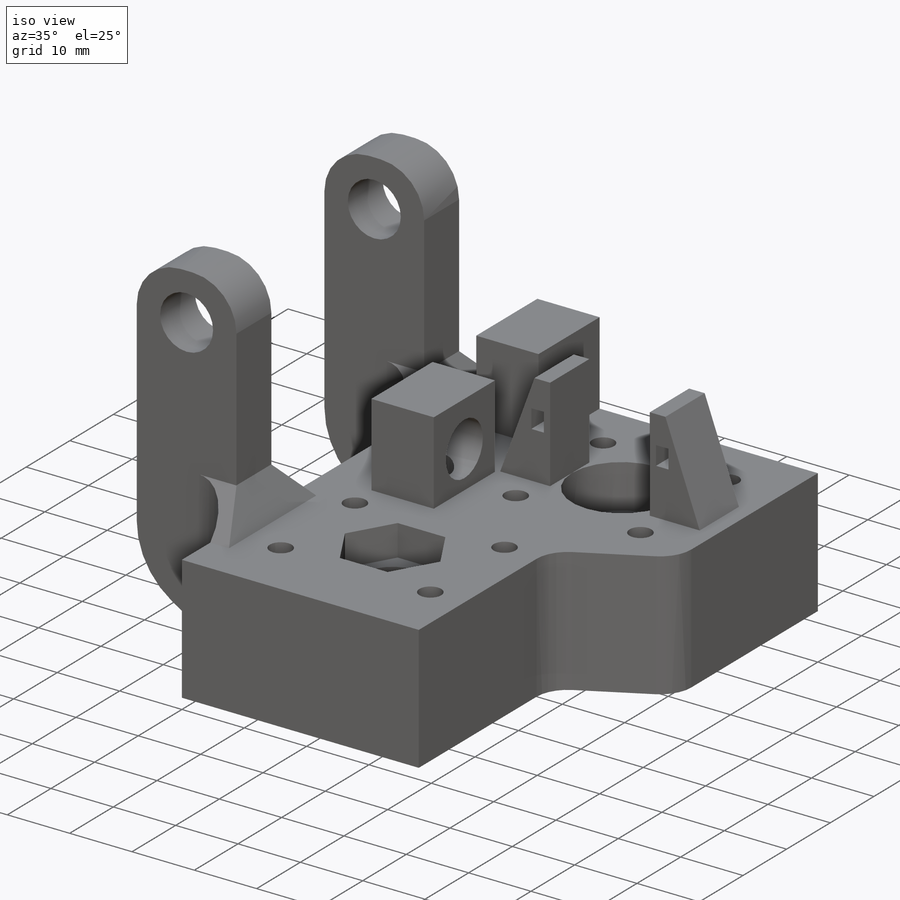
[diagram: iso view]
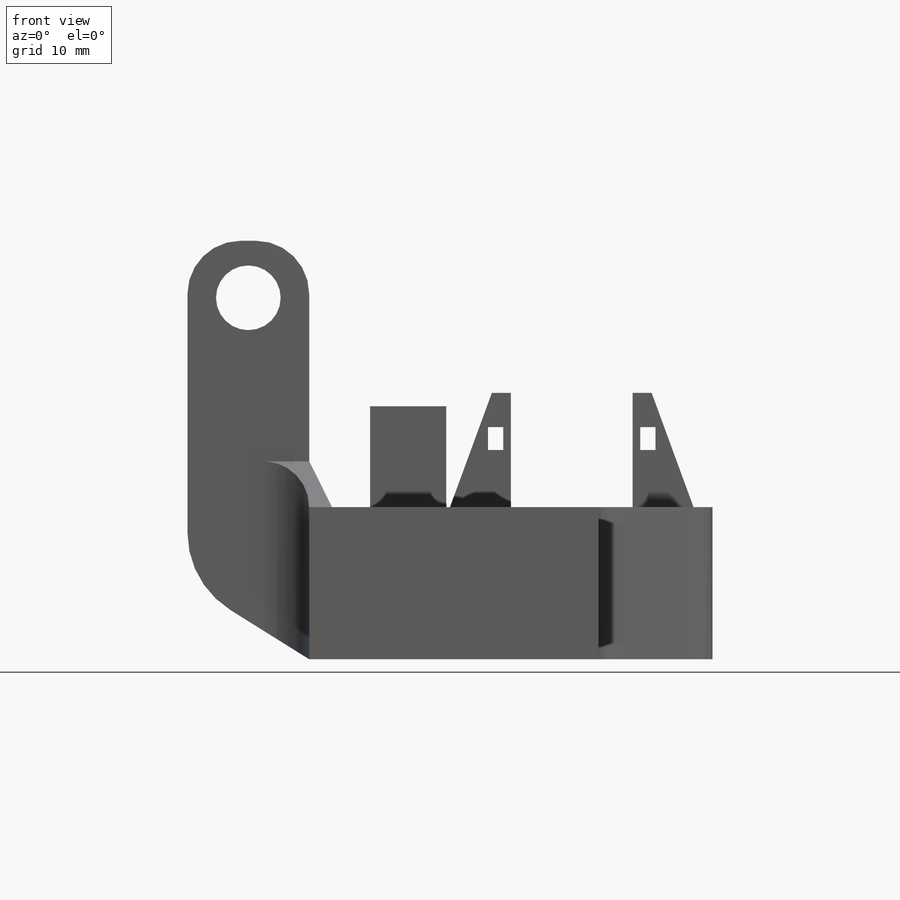
[diagram: front view]
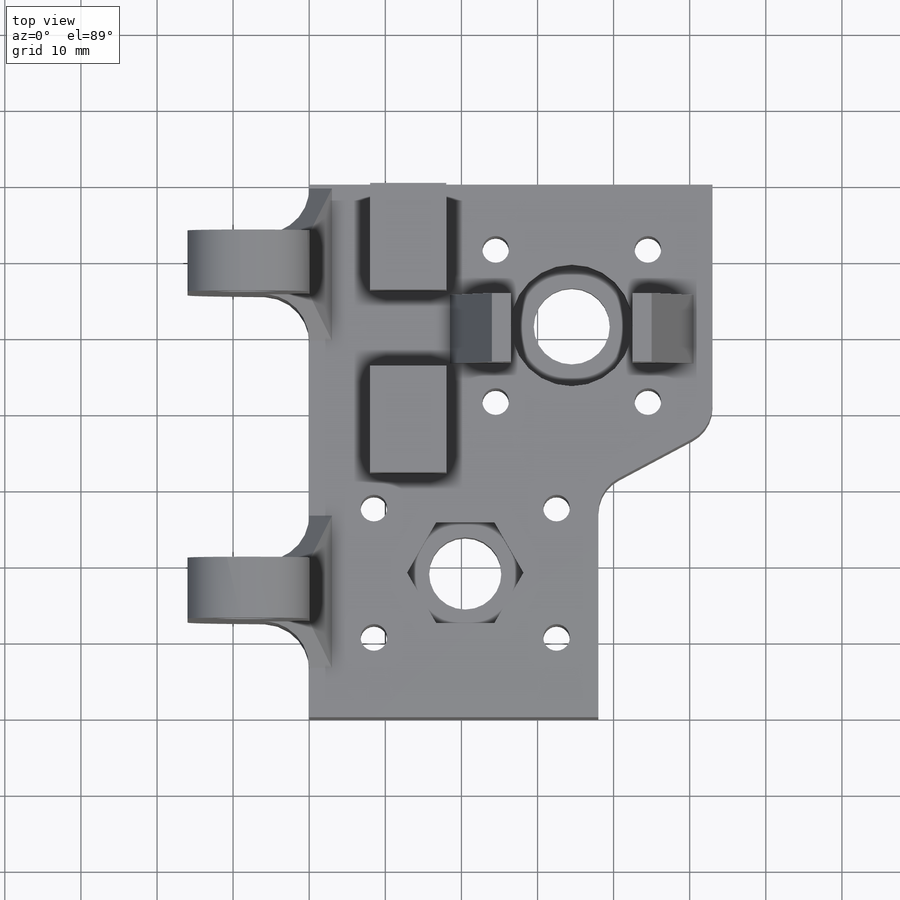
[diagram: top view]
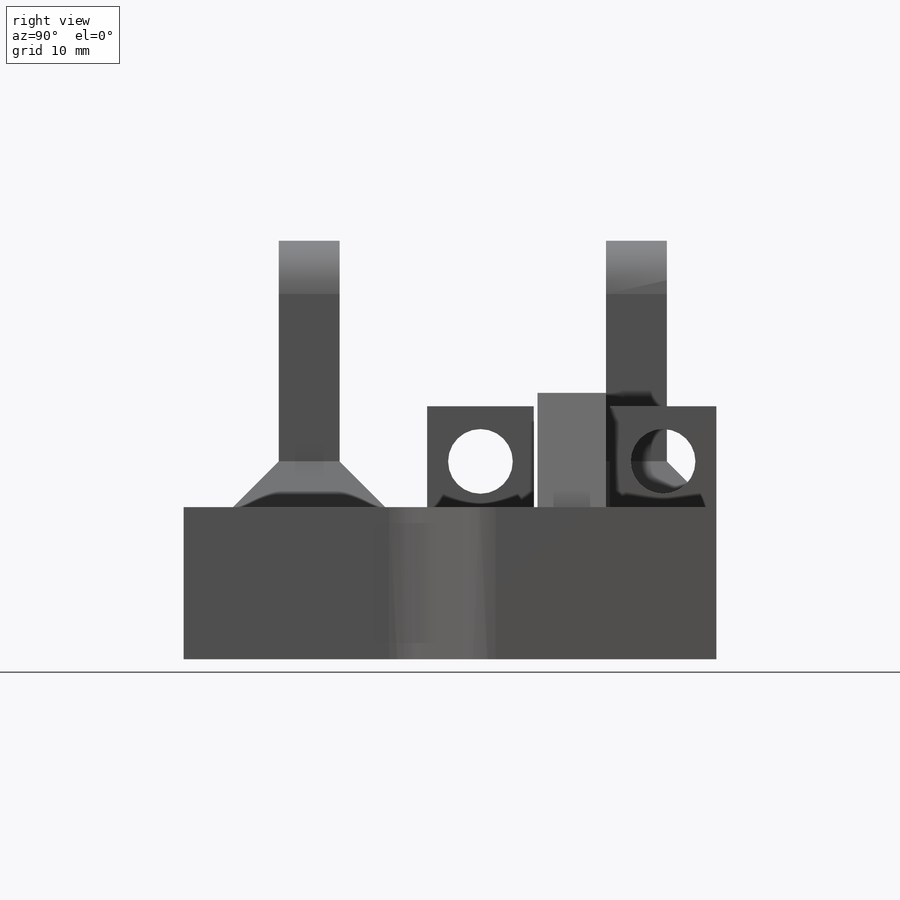
[diagram: right view]
SOLIDWORKS PART (.sldprt)
format: sldprt  version: not decoded by parser v0  size: 624,640 bytes
history: native  units: mm
features: sketch x20, cut_extrude x11, extrude x5, fillet x4, chamfer x3, hole x2, material x1 (+11 scaffold rows collapsed)
feature tree (57):
  scaffold x11  (default folders/planes/origin — collapsed)
  material  "ABS PC"
  sketch  "Sketch1"  dims[D1=53.0mm D2=70.0mm]
  extrude  "Boss-Extrude1"  Depth=10mm
  sketch  "Sketch2"  dims[D1=38.0mm D2=30.0mm D3=32.0mm D4=53.0mm D5=70.0mm]
  extrude  "Boss-Extrude2"  Depth=10mm
  sketch  "Sketch3"  dims[c1.D1=9.5mm c1.D2=10.0mm c1.D3=9.5mm c1.D4=10.0mm c1.D5=10.0mm c1.D6=10.0mm c2.D3=32.5mm c2.D4=14.0mm c2.D5=18.5mm c2.D6=18.5mm]
  cut_extrude  "Cut-Extrude1"  [1 undecoded]
  sketch  "Sketch4"  dims[D1=15.3mm]
  cut_extrude  "Cut-Extrude2"  Depth=5mm
  sketch  "Sketch5"  dims[c1.D3=3.5mm c1.D4=3.5mm c1.D5=3.5mm c1.D6=3.5mm c1.D7=3.5mm c1.D8=9.5mm c1.D9=9.5mm c1.D1=10.0mm c1.D2=10.0mm c2.D4=10.0mm c2.D5=10.0mm c2.D6=12.0mm c2.D7=12.0mm c2.D8=8.5mm c2.D9=8.5mm]
  cut_extrude  "Cut-Extrude3"  [1 undecoded]
  sketch  "Sketch6"  dims[D1=15.0mm D2=38.0mm D3=30.0mm]
  cut_extrude  "Cut-Extrude4"  [1 undecoded]
  sketch  "Sketch7"  dims[D1=16.0mm]
  cut_extrude  "Cut-Extrude5"  Depth=7mm
  sketch  "Sketch8"  dims[D1=14.0mm D2=10.0mm D3=10.0mm D4=35.0mm]
  extrude  "Boss-Extrude3"  Depth=13.25mm
  sketch  "Sketch9"  dims[c1.D1=8.5mm c1.D2=8.5mm c1.D3=8.5mm c1.D4=8.5mm c2.D2=7.0mm c2.D3=7.0mm c2.D4=6.0mm]
  cut_extrude  "Cut-Extrude6"  Depth=13.5mm
  sketch  "Sketch10"  dims[D1=8.4mm D2=5.2mm D3=3.0mm D4=35.8mm]
  cut_extrude  "Cut-Extrude7"  Depth=38mm
  fillet  "Fillet1"  Radius=5mm
  hole  "Ø5.5 (5.5) Diameter Hole1"  Diameter=5.5mm Depth=23mm
  sketch  "Sketch13"  dims[D1=7.0mm D2=24.0mm D3=40.0mm]
  sketch  "Sketch12"  dims[hole-wizard template sketch: 46 standard entries collapsed; hole parameters kept: c15.Hole Dia.=5.5mm c15.Hole Depth=23.0mm c15.D3=~14.816244mm c15.Drill Angle=118.0deg]
  sketch  "Sketch14"  dims[D1=16.0mm]
  cut_extrude  "Cut-Extrude8"  Depth=7mm
  sketch  "Sketch15"  dims[D1=15.3mm]
  cut_extrude  "Cut-Extrude9"  Depth=5mm
  sketch  "Sketch16"  dims[D1=9.0mm D2=14.5mm D3=10.5mm D4=8.0mm D5=26.5mm]
  extrude  "Boss-Extrude4"  Depth=15mm
  sketch  "Sketch17"  dims[D1=5.5mm]
  cut_extrude  "Cut-Extrude10"  Depth=15mm
  sketch  "Sketch18"  dims[D1=2.0mm D2=3.0mm D3=4.5mm D4=1.0mm D5=1.0mm]
  cut_extrude  "Cut-Extrude11"  Depth=15mm
  sketch  "Sketch20"  dims[c1.D1=8.0mm c1.D2=8.0mm c1.D3=10.0mm c1.D4=24.0mm c1.D5=35.0mm c2.D2=35.0mm c2.D4=14.5mm]
  extrude  "Boss-Extrude5"  Depth=16mm
  chamfer  "Chamfer1"  Distance=10mm Angle=58deg
  hole  "Ø8.5 (8.5) Diameter Hole1"  Diameter=8.5mm Depth=57.50005mm
  sketch  "Sketch22"  dims[D1=7.5mm D2=8.0mm]
  sketch  "Sketch23"  dims[hole-wizard template sketch: 59 standard entries collapsed; hole parameters kept: c18.Thru Hole Dia.=8.5mm c18.Thru Hole Depth=~57.50005mm]
  fillet  "Fillet2"  Radius=7mm
  fillet  "Fillet3"  Radius=12mm
  fillet  "Fillet4"  Radius=6mm
  chamfer  "Chamfer2"  Distance=6mm Angle=45deg
  chamfer  "Chamfer3"  Distance=3mm Angle=63.5deg
decode coverage: 42 of 45 modeling features carry decoded parameters
note: ~ marks probable driven/reference dimensions
note: 3 parameter values undecoded
summary: no parameter record found for 3 features
note: suppression state not decoded; provenance and decode notes live in map.json
